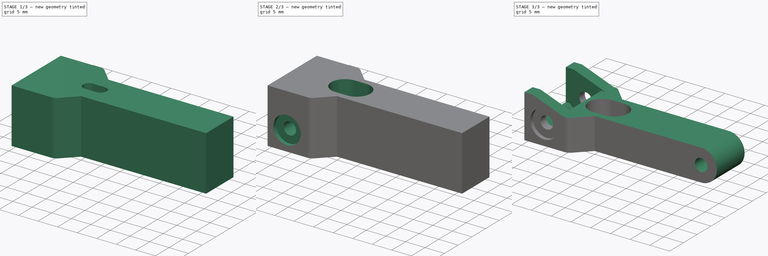
[diagram: build sequence overview — one tinted view per stage of 3, left to right]
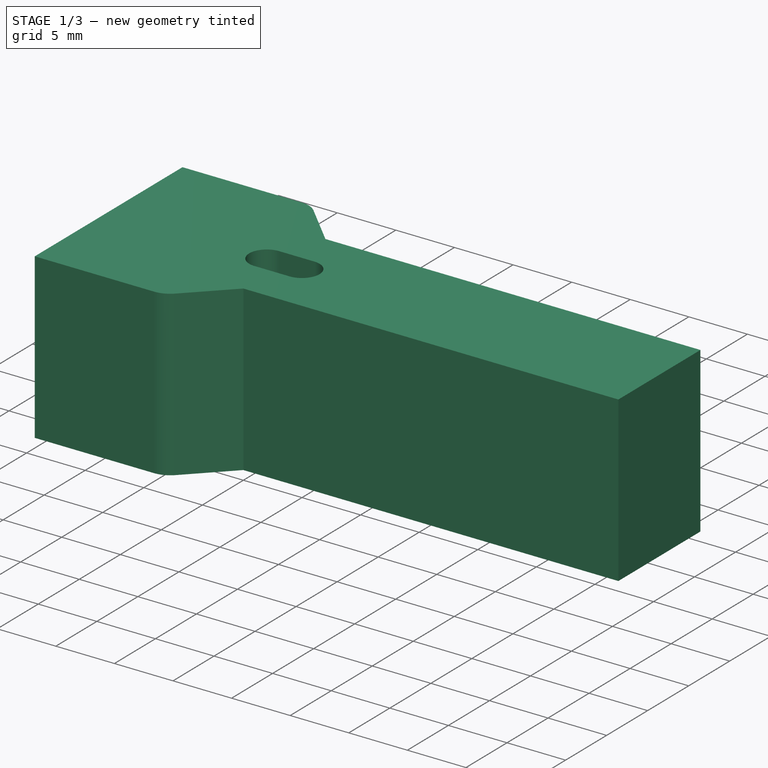
[diagram: stage 1 of 3 — iso view after this stage's code; geometry added in this stage tinted green]
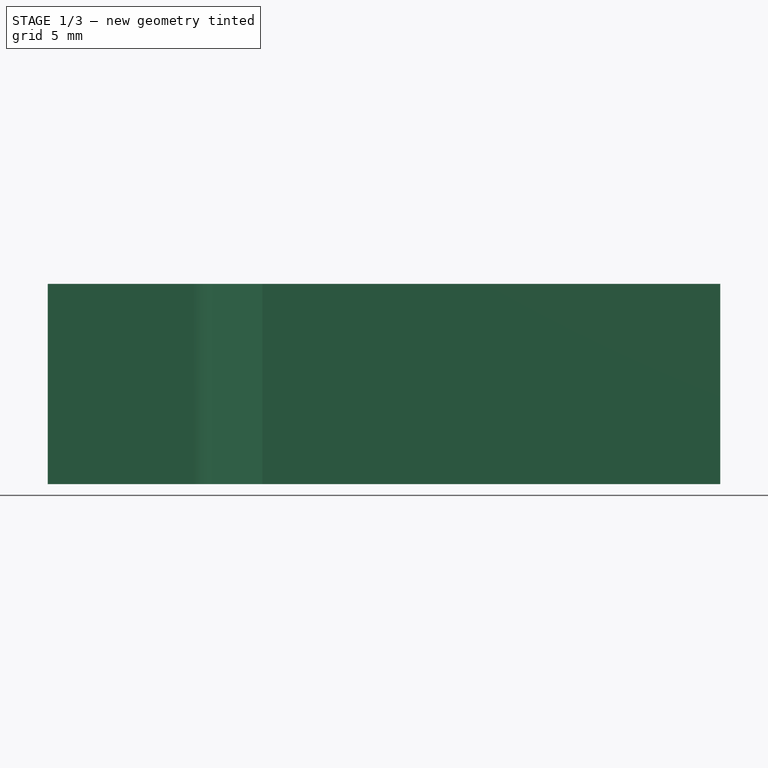
[diagram: stage 1 of 3 — front view after this stage's code; geometry added in this stage tinted green]
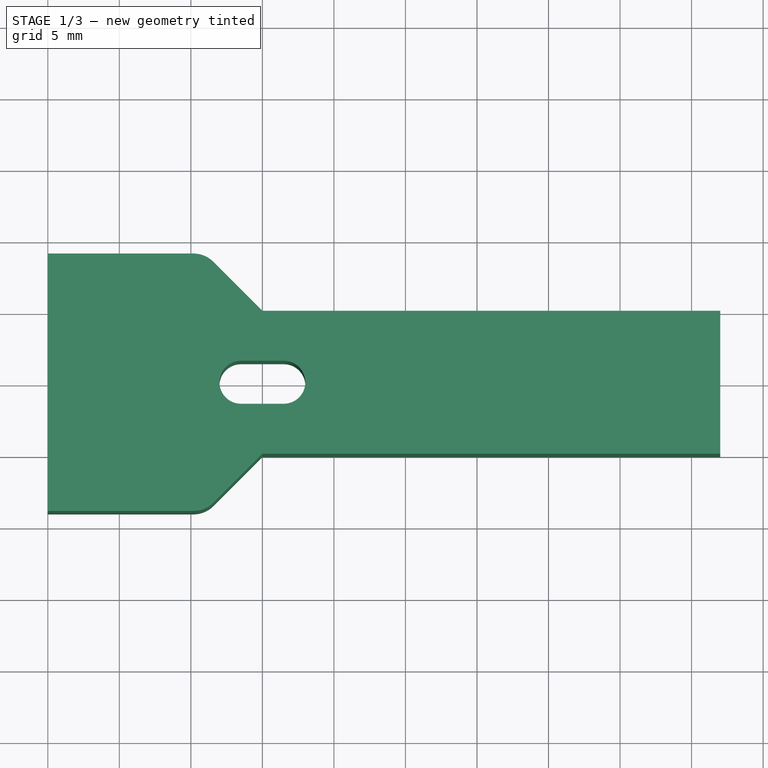
[diagram: stage 1 of 3 — top view after this stage's code; geometry added in this stage tinted green]
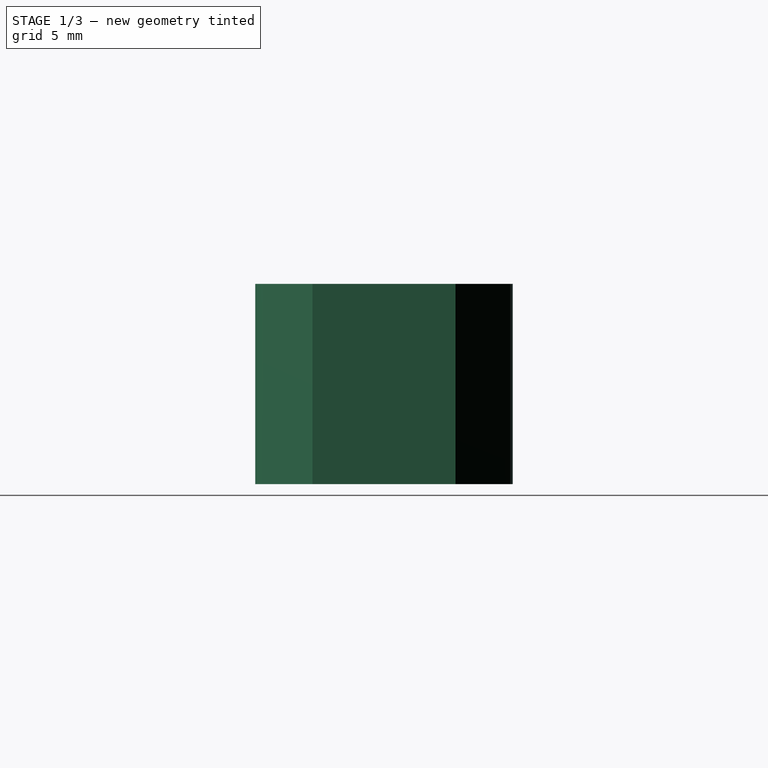
[diagram: stage 1 of 3 — right view after this stage's code; geometry added in this stage tinted green]
FCSTD DOCUMENT  (FreeCAD 1.0R39109 (Git))
Label: RearSightMid.stl
License: All rights reserved
LicenseURL: http://en.wikipedia.org/wiki/All_rights_reserved
objects: Sketcher::SketchObject×6, PartDesign::Pocket×4, PartDesign::Pad×1, PartDesign::Hole×1, PartDesign::Mirrored×1, PartDesign::Body×1, App::Part×1
note: 33 computed .brp shape members not serialized (recipe doc carries the construction recipe); baked Part::Feature solids carry a one-line shape summary decoded from their .brp

FEATURE [Sketcher::SketchObject] Sketch
  ArcFitTolerance = 1e-06
  AttachmentSupport = -> [XY_Plane001]
  FullyConstrained = true
  MakeInternals = false
  MapMode = 5
  sketch-geometry (12):
    g0: LineSegment StartX=-15 StartY=9 StartZ=0 EndX=-15 EndY=-9 EndZ=0
    g1: LineSegment StartX=-15 StartY=-9 StartZ=0 EndX=-4.82843 EndY=-9 EndZ=0
    g2: LineSegment StartX=-3.41421 StartY=-8.41421 StartZ=0 EndX=-4e-16 EndY=-5 EndZ=0
    g3: LineSegment StartX=-15 StartY=9 StartZ=0 EndX=-4.82843 EndY=9 EndZ=0
    g4: LineSegment StartX=-3.41421 StartY=8.41421 StartZ=0 EndX=-4e-16 EndY=5 EndZ=0
    g5: ArcOfCircle CenterX=-4.82843 CenterY=7 CenterZ=0 NormalX=0 NormalY=0 NormalZ=1 AngleXU=0 Radius=2 StartAngle=0.785398 EndAngle=1.5708
    g6: GeomPoint [constr] X=-4 Y=9 Z=0
    g7: ArcOfCircle CenterX=-4.82843 CenterY=-7 CenterZ=0 NormalX=0 NormalY=0 NormalZ=1 AngleXU=0 Radius=2 StartAngle=4.71239 EndAngle=5.49779
    g8: GeomPoint [constr] X=-4 Y=-9 Z=0
    g9: LineSegment StartX=-4e-16 StartY=5 StartZ=0 EndX=32 EndY=5 EndZ=0
    g10: LineSegment StartX=32 StartY=5 StartZ=0 EndX=32 EndY=-5 EndZ=0
    g11: LineSegment StartX=32 StartY=-5 StartZ=0 EndX=0 EndY=-5 EndZ=0
  constraints (32):
    c: Vertical(g0)
    c: DistanceX(g0,g-1) = 15
    c: Coincident(g1,g0)
    c: Horizontal(g1)
    c: PointOnObject(g2,g-2)
    c: Coincident(g3,g0)
    c: Horizontal(g3)
    c: PointOnObject(g4,g-2)
    c: Vertical(g6,g8)
    c: PointOnObject(g6,g3)
    c: PointOnObject(g6,g4)
    c: Tangent(g3,g5) = 1.5708
    c: Tangent(g4,g5) = 1.5708
    c: PointOnObject(g8,g1)
    c: PointOnObject(g8,g2)
    c: Tangent(g1,g7) = -1.5708
    c: Tangent(g2,g7) = -1.5708
    c: Radius(g5) = 2
    c: Angle(g-1,g2) = 0.785398
    c: Vertical(g7,g5)
    c: Coincident(g9,g4)
    c: Horizontal(g9)
    c: Coincident(g10,g9)
    c: Vertical(g10)
    c: Coincident(g11,g10)
    c: Coincident(g11,g2)
    c: Horizontal(g11)
    c: DistanceY(g-1,g9) = 5
    c: DistanceY(g10,g-1) = 5
    c: DistanceX(g-1,g9) = 32
    c: DistanceY(g-1,g0) = 9
    c: DistanceY(g0,g-1) = 9
FEATURE [PartDesign::Pad] Pad
  Direction = (0,0,1)
  Length = 14
  Length2 = 10
  Profile = -> Sketch
  ReferenceAxis = -> Sketch [N_Axis]
  Refine = true
  Suppressed = false
  Type = 0
FEATURE [Sketcher::SketchObject] Sketch001
  ArcFitTolerance = 1e-06
  AttachmentOffset = pos=(0,0,10) rot=(0,0,1;0rad)
  AttachmentSupport = -> [XY_Plane001]
  FullyConstrained = true
  MakeInternals = false
  MapMode = 5
  Placement = pos=(0,0,10) rot=(0,0,1;0rad)
  sketch-geometry (4):
    g0: ArcOfCircle CenterX=-1.5 CenterY=-5.257e-13 CenterZ=0 NormalX=0 NormalY=0 NormalZ=1 AngleXU=0 Radius=1.5 StartAngle=1.5708 EndAngle=4.71239
    g1: ArcOfCircle CenterX=1.5 CenterY=1.133e-13 CenterZ=0 NormalX=0 NormalY=0 NormalZ=1 AngleXU=0 Radius=1.5 StartAngle=4.71239 EndAngle=7.85398
    g2: LineSegment StartX=-1.5 StartY=1.5 StartZ=0 EndX=1.5 EndY=1.5 EndZ=0
    g3: LineSegment StartX=-1.5 StartY=-1.5 StartZ=0 EndX=1.5 EndY=-1.5 EndZ=0
  constraints (9):
    c: Tangent(g0,g2) = 1.5708
    c: Tangent(g0,g3) = -1.5708
    c: Tangent(g1,g2) = 1.5708
    c: Tangent(g1,g3) = -1.5708
    c: Equal(g0,g1)
    c: Horizontal(g3)
    c: Radius(g1) = 1.5
    c: Distance(g2,g2) = 3
    c: Symmetric(g0,g1,g-1)
FEATURE [Sketcher::SketchObject] Sketch002
  ArcFitTolerance = 1e-06
  AttachmentOffset = pos=(0,0,9) rot=(0,0,1;0rad)
  AttachmentSupport = -> [XZ_Plane001]
  FullyConstrained = true
  MakeInternals = false
  MapMode = 5
  Placement = pos=(0,-9,2e-15) rot=(1,0,0;1.5708rad)
  sketch-geometry (1):
    g0: Circle CenterX=-10 CenterY=5 CenterZ=0 NormalX=0 NormalY=0 NormalZ=1 AngleXU=0 Radius=1.5
  constraints (3):
    c: DistanceY(g-1,g0) = 5
    c: DistanceX(g0,g-1) = 10
    c: Diameter(g0) = 3
FEATURE [Sketcher::SketchObject] Sketch003
  ArcFitTolerance = 1e-06
  AttachmentSupport = -> [XZ_Plane001]
  FullyConstrained = true
  MakeInternals = false
  MapMode = 5
  Placement = pos=(0,0,0) rot=(1,0,0;1.5708rad)
  sketch-geometry (9):
    g0: LineSegment StartX=-6 StartY=1 StartZ=0 EndX=-12 EndY=1 EndZ=0
    g1: LineSegment StartX=-12 StartY=1 StartZ=0 EndX=-14 EndY=3 EndZ=0
    g2: LineSegment StartX=-14 StartY=3 StartZ=0 EndX=-15 EndY=3 EndZ=0
    g3: LineSegment StartX=-15 StartY=3 StartZ=0 EndX=-15 EndY=20 EndZ=0
    g4: LineSegment StartX=-15 StartY=20 StartZ=0 EndX=10 EndY=20 EndZ=0
    g5: Circle [constr] CenterX=-10 CenterY=5 CenterZ=0 NormalX=0 NormalY=0 NormalZ=1 AngleXU=0 Radius=1.5
    g6: LineSegment StartX=-6 StartY=1 StartZ=0 EndX=-6 EndY=8 EndZ=0
    g7: LineSegment StartX=-6 StartY=8 StartZ=0 EndX=10 EndY=8 EndZ=0
    g8: LineSegment StartX=10 StartY=8 StartZ=0 EndX=10 EndY=20 EndZ=0
  constraints (27):
    c: Horizontal(g0)
    c: Coincident(g1,g2)
    c: Coincident(g2,g3)
    c: Vertical(g3)
    c: Coincident(g3,g4)
    c: Horizontal(g4)
    c: DistanceY(g-1,g4) = 20
    c: Angle(g1,g0) = 0.785398
    c: Horizontal(g2)
    c: DistanceX(g2,g-1) = 15
    c: DistanceX(g5,g-1) = 10
    c: DistanceY(g-1,g5) = 5
    c: DistanceY(g2,g5) = 2
    c: DistanceX(g1,g5) = 4
    c: DistanceY(g0,g5) = 4
    c: DistanceX(g5,g0) = 4
    c: Diameter(g5) = 3
    c: Coincident(g0,g1)
    c: Coincident(g6,g0)
    c: Vertical(g6)
    c: Coincident(g7,g6)
    c: Horizontal(g7)
    c: Coincident(g8,g7)
    c: Coincident(g8,g4)
    c: Vertical(g8)
    c: DistanceX(g-1,g4) = 10
    c: DistanceY(g-1,g7) = 8
FEATURE [Sketcher::SketchObject] Sketch007
  ArcFitTolerance = 1e-06
  AttachmentSupport = -> [XZ_Plane001]
  FullyConstrained = true
  MakeInternals = false
  MapMode = 5
  Placement = pos=(0,0,0) rot=(1,0,0;1.5708rad)
  sketch-geometry (10):
    g0: Circle CenterX=27 CenterY=4 CenterZ=0 NormalX=0 NormalY=0 NormalZ=1 AngleXU=0 Radius=1.6
    g1: ArcOfCircle CenterX=27 CenterY=4 CenterZ=0 NormalX=0 NormalY=0 NormalZ=1 AngleXU=0 Radius=4 StartAngle=4.71238 EndAngle=7.85398
    g2: LineSegment StartX=27 StartY=8 StartZ=0 EndX=-5 EndY=8 EndZ=0
    g3: LineSegment StartX=-15 StartY=20 StartZ=0 EndX=37 EndY=20 EndZ=0
    g4: LineSegment StartX=37 StartY=20 StartZ=0 EndX=37 EndY=-2 EndZ=0
    g5: LineSegment StartX=37 StartY=-2 StartZ=0 EndX=27 EndY=-2 EndZ=0
    g6: LineSegment StartX=27 StartY=-2 StartZ=0 EndX=27 EndY=4.50671e-11 EndZ=0
    g7: LineSegment StartX=-15 StartY=20 StartZ=0 EndX=-15 EndY=11 EndZ=0
    g8: LineSegment StartX=-15 StartY=11 StartZ=0 EndX=-13 EndY=11 EndZ=0
    g9: LineSegment StartX=-13 StartY=11 StartZ=0 EndX=-5 EndY=8 EndZ=0
  constraints (29):
    c: Diameter(g0) = 3.2
    c: DistanceX(g-1,g0) = 27
    c: DistanceY(g-1,g0) = 4
    c: Coincident(g1,g0)
    c: PointOnObject(g1,g-1)
    c: Tangent(g1,g2) = -1.5708
    c: Coincident(g3,g4)
    c: Vertical(g4)
    c: Coincident(g4,g5)
    c: Horizontal(g5)
    c: Coincident(g5,g6)
    c: Coincident(g6,g1)
    c: Vertical(g6)
    c: DistanceY(g-1,g2) = 8
    c: Horizontal(g3)
    c: Radius(g1) = 4
    c: DistanceY(g6,g6) = 2
    c: DistanceX(g5,g4) = 10
    c: DistanceY(g-1,g3) = 20
    c: Coincident(g8,g7)
    c: DistanceX(g3,g-1) = 15
    c: Coincident(g7,g3)
    c: DistanceY(g-1,g7) = 11
    c: Horizontal(g8)
    c: Coincident(g9,g8)
    c: Coincident(g9,g2)
    c: DistanceX(g2,g-1) = 5
    c: DistanceX(g8,g8) = 2
    c: Vertical(g7)
FEATURE [PartDesign::Pocket] Pocket004  label="AdjusterBoltHole"
  BaseFeature = -> Pad
  Direction = (0,0,-1)
  Length = 5
  Length2 = 5
  Midplane = true
  Profile = -> Sketch001
  ReferenceAxis = -> Sketch001 [N_Axis]
  Refine = true
  Suppressed = false
  Type = 1
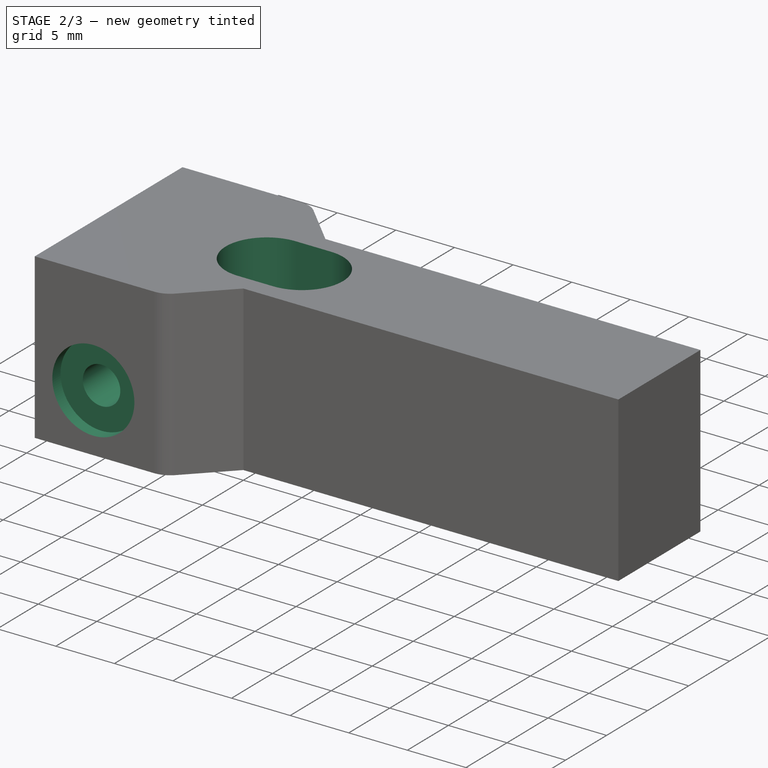
[diagram: stage 2 of 3 — iso view after this stage's code; geometry added in this stage tinted green]
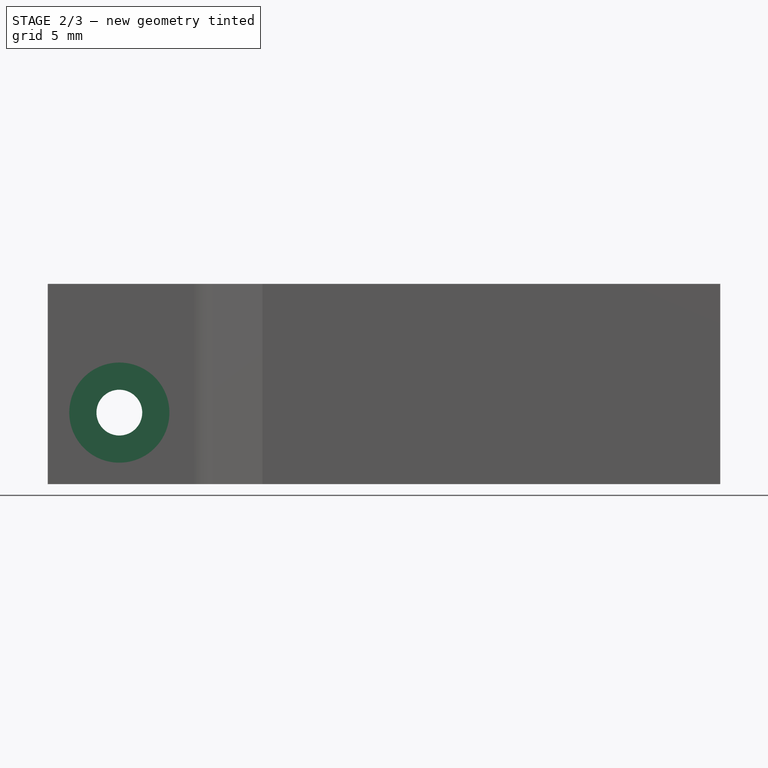
[diagram: stage 2 of 3 — front view after this stage's code; geometry added in this stage tinted green]
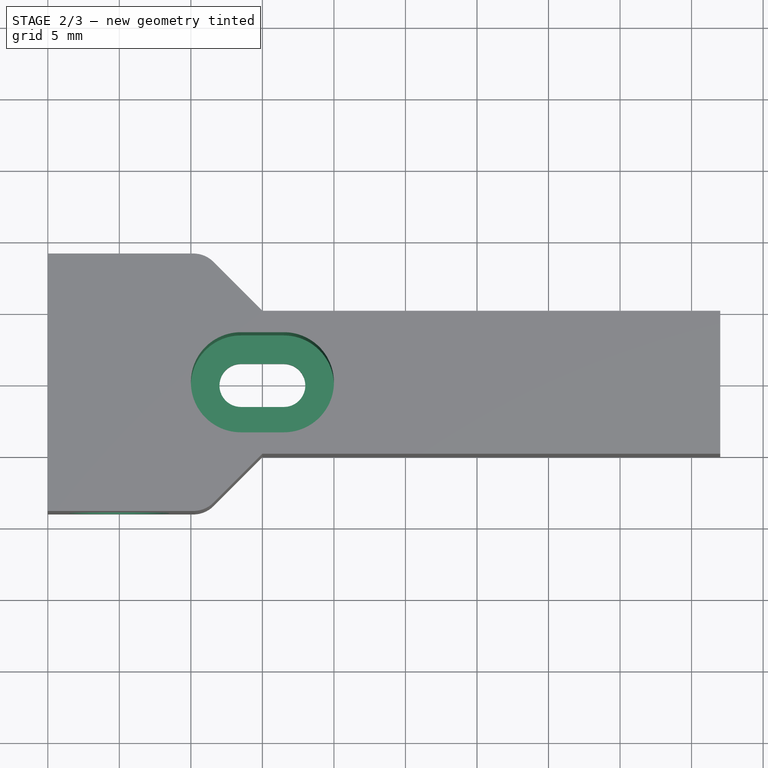
[diagram: stage 2 of 3 — top view after this stage's code; geometry added in this stage tinted green]
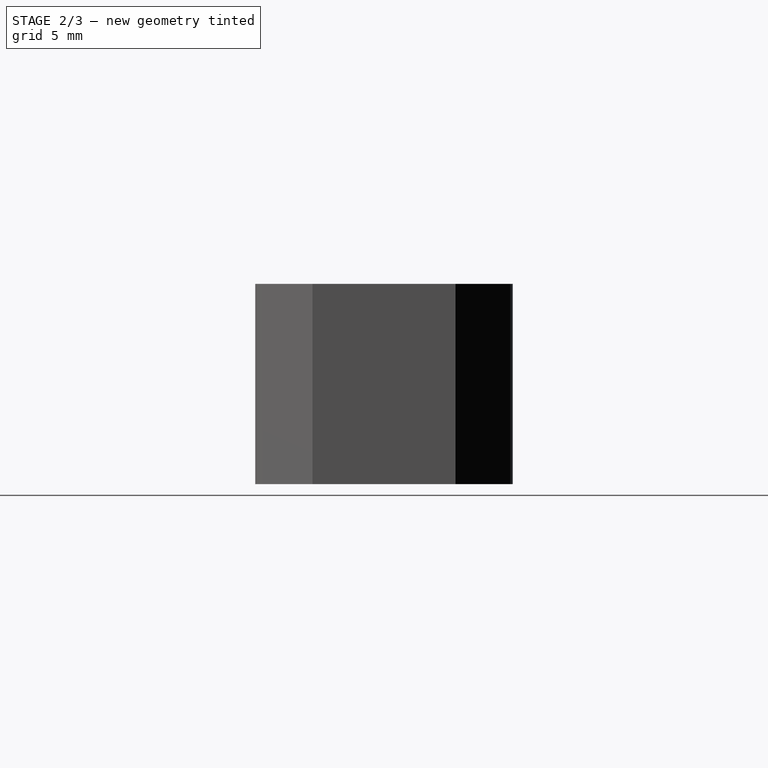
[diagram: stage 2 of 3 — right view after this stage's code; geometry added in this stage tinted green]
FEATURE [Sketcher::SketchObject] Sketch014
  ArcFitTolerance = 1e-06
  AttachmentOffset = pos=(0,0,1) rot=(0,0,1;0rad)
  AttachmentSupport = -> [XY_Plane001]
  FullyConstrained = true
  MakeInternals = false
  MapMode = 5
  Placement = pos=(0,0,1) rot=(0,0,1;0rad)
  sketch-geometry (4):
    g0: ArcOfCircle CenterX=-1.5 CenterY=-8.8e-15 CenterZ=0 NormalX=0 NormalY=0 NormalZ=1 AngleXU=0 Radius=3.5 StartAngle=1.5708 EndAngle=4.71239
    g1: ArcOfCircle CenterX=1.5 CenterY=8.7e-15 CenterZ=0 NormalX=0 NormalY=0 NormalZ=1 AngleXU=0 Radius=3.5 StartAngle=4.71239 EndAngle=7.85398
    g2: LineSegment StartX=-1.5 StartY=3.5 StartZ=0 EndX=1.5 EndY=3.5 EndZ=0
    g3: LineSegment StartX=-1.5 StartY=-3.5 StartZ=0 EndX=1.5 EndY=-3.5 EndZ=0
  constraints (9):
    c: Tangent(g0,g2) = 1.5708
    c: Tangent(g0,g3) = -1.5708
    c: Tangent(g1,g2) = 1.5708
    c: Tangent(g1,g3) = -1.5708
    c: Equal(g0,g1)
    c: Horizontal(g3)
    c: Radius(g1) = 3.5
    c: DistanceX(g2,g2) = 3
    c: Symmetric(g1,g0,g-1)
FEATURE [PartDesign::Pocket] Pocket005  label="AdjusterBoltHeadHole"
  BaseFeature = -> Pocket004
  Direction = (0,0,-1)
  Length = 5
  Length2 = 5
  Profile = -> Sketch014
  ReferenceAxis = -> Sketch014 [N_Axis]
  Refine = true
  Reversed = true
  Suppressed = false
  Type = 1
FEATURE [PartDesign::Hole] Hole001
  BaseFeature = -> Pocket005
  CustomThreadClearance = 0
  Depth = 25
  DepthType = 0
  Diameter = 3.2
  DrillForDepth = false
  DrillPoint = 1
  DrillPointAngle = 118
  HoleCutCountersinkAngle = 90
  HoleCutCustomValues = false
  HoleCutDepth = 1
  HoleCutDiameter = 7
  HoleCutType = 1
  ModelThread = false
  Profile = -> Sketch002
  Refine = true
  Suppressed = false
  Tapered = false
  TaperedAngle = 90
  ThreadClass = 0
  ThreadDepth = 25
  ThreadDepthType = 0
  ThreadDirection = 0
  ThreadFit = 1
  ThreadSize = 9
  ThreadType = 1
  Threaded = false
  UseCustomThreadClearance = false
FEATURE [PartDesign::Mirrored] Mirrored
  BaseFeature = -> Hole001
  MirrorPlane = -> XZ_Plane001
  Originals = -> [Hole001]
  Refine = true
  Suppressed = false
  TransformMode = 0
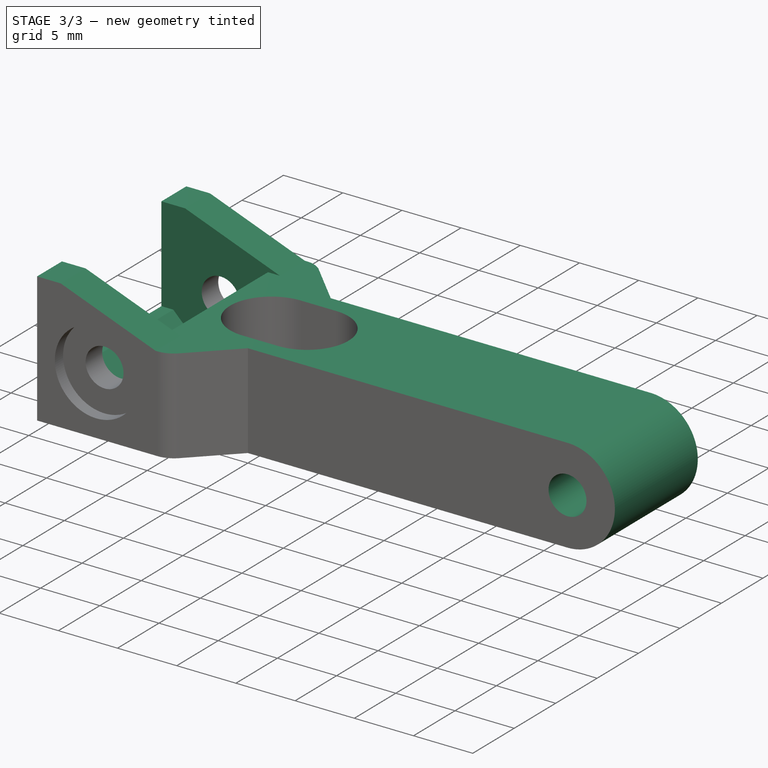
[diagram: stage 3 of 3 — iso view after this stage's code; geometry added in this stage tinted green]
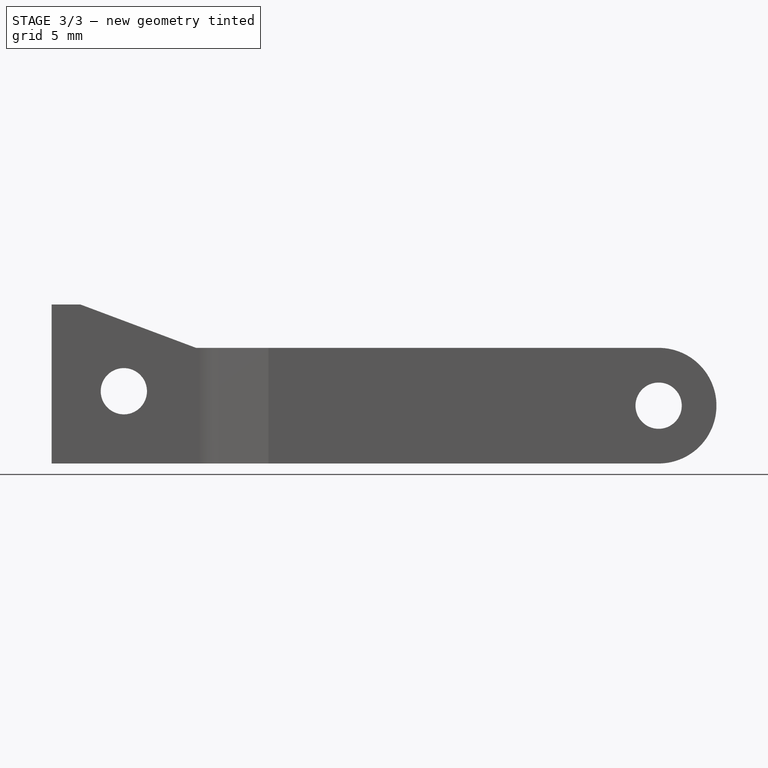
[diagram: stage 3 of 3 — front view after this stage's code; geometry added in this stage tinted green]
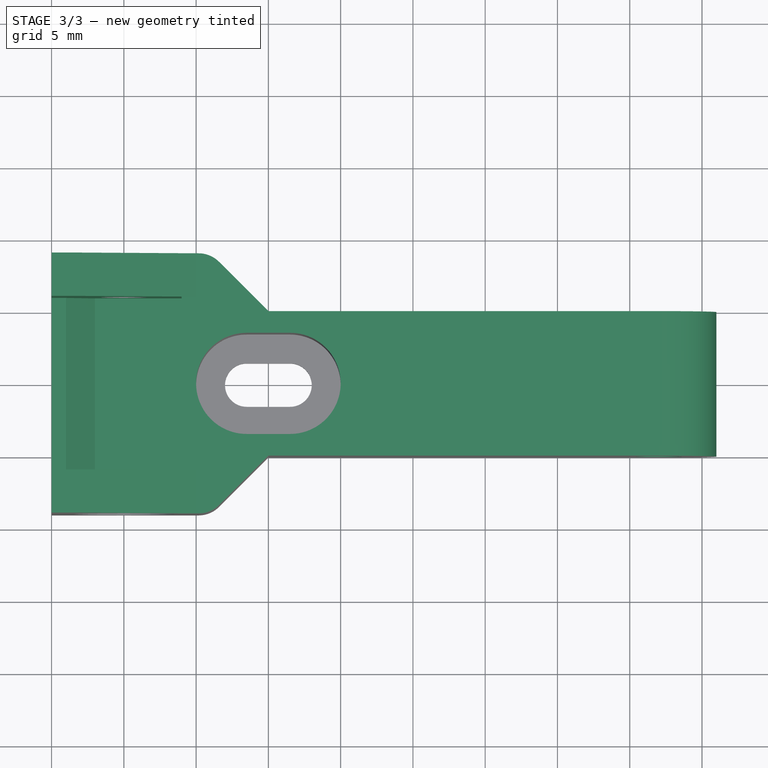
[diagram: stage 3 of 3 — top view after this stage's code; geometry added in this stage tinted green]
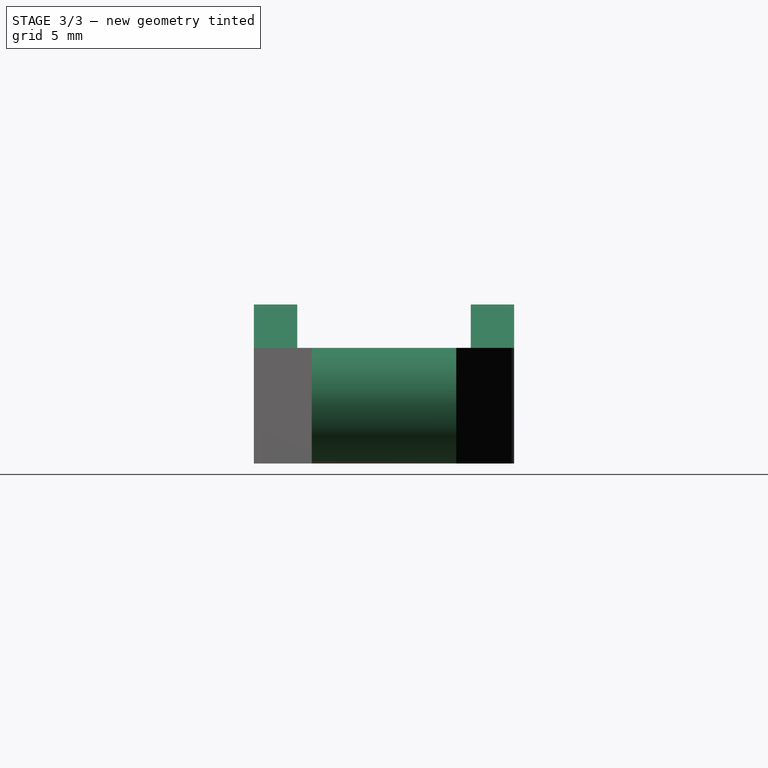
[diagram: stage 3 of 3 — right view after this stage's code; geometry added in this stage tinted green]
FEATURE [PartDesign::Pocket] Pocket
  BaseFeature = -> Mirrored
  Direction = (0,1,-2e-16)
  Length = 12
  Length2 = 5
  Midplane = true
  Profile = -> Sketch003
  ReferenceAxis = -> Sketch003 [N_Axis]
  Refine = true
  Suppressed = false
  Type = 0
FEATURE [PartDesign::Pocket] Pocket002
  BaseFeature = -> Pocket
  Direction = (0,1,-2e-16)
  Length = 5
  Length2 = 5
  Midplane = true
  Profile = -> Sketch007
  ReferenceAxis = -> Sketch007 [N_Axis]
  Refine = true
  Suppressed = false
  Type = 1
FEATURE [PartDesign::Body] Body
  AllowCompound = false
  Group = -> [Sketch,Pad,Sketch001,Sketch002,Pocket004,Sketch014,Pocket005,Hole001,Mirrored,Sketch003,Pocket,Sketch007,Pocket002]
  Origin = -> Origin001
  Tip = -> Pocket002
FEATURE [App::Part] Part  label="RearSightMid.stl"
  Group = -> [Body]
  Origin = -> Origin
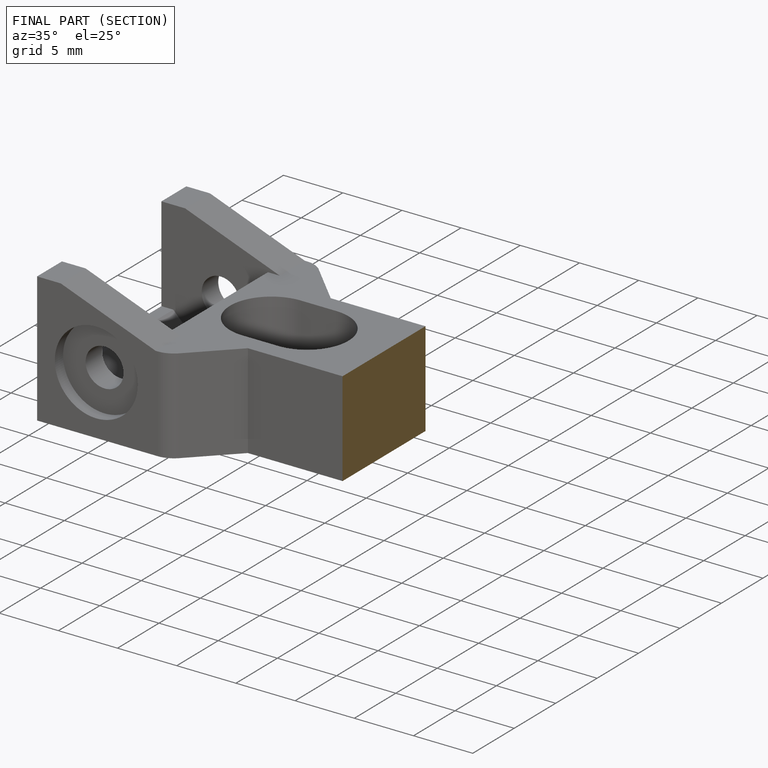
[diagram: finished part — half-section view (interior)]
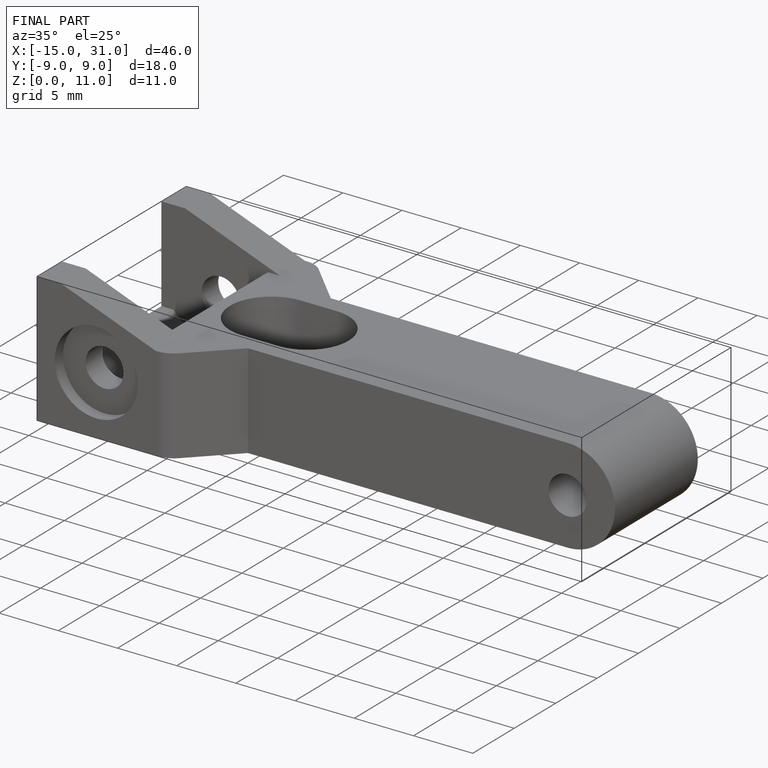
[diagram: finished part — iso view with bounding-box wireframe]
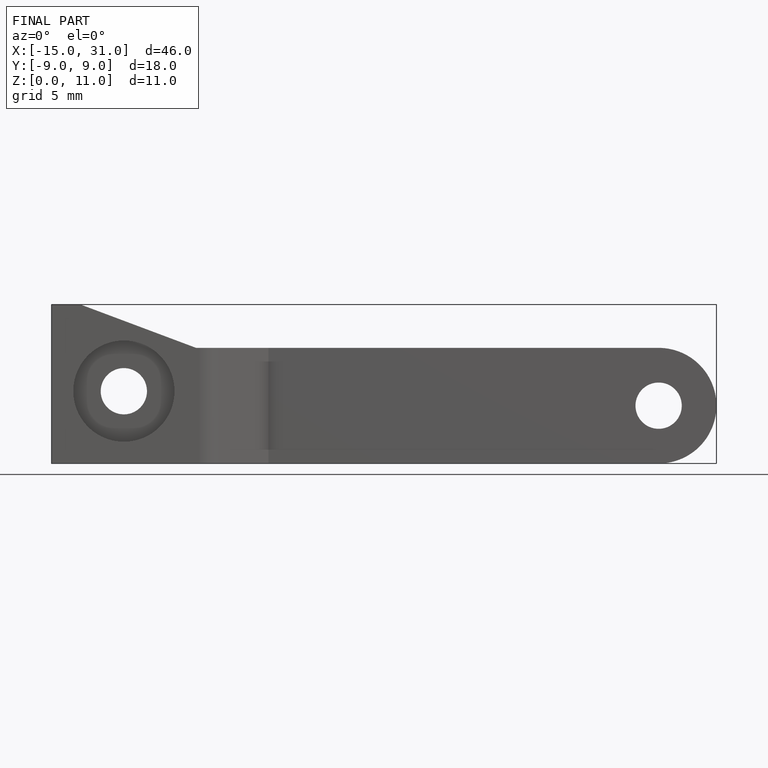
[diagram: finished part — front view with bounding-box wireframe]
